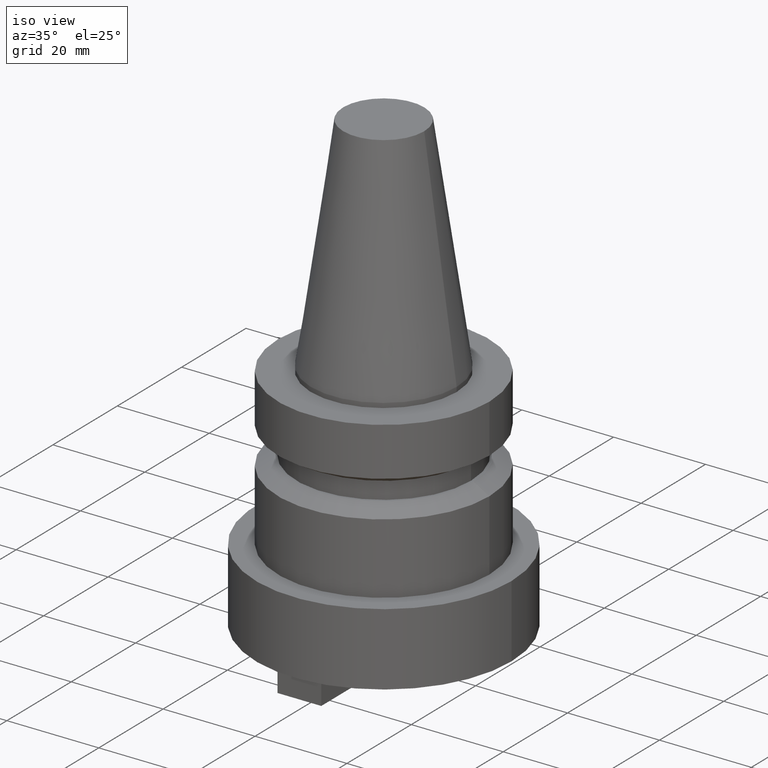
[diagram: clean part render]
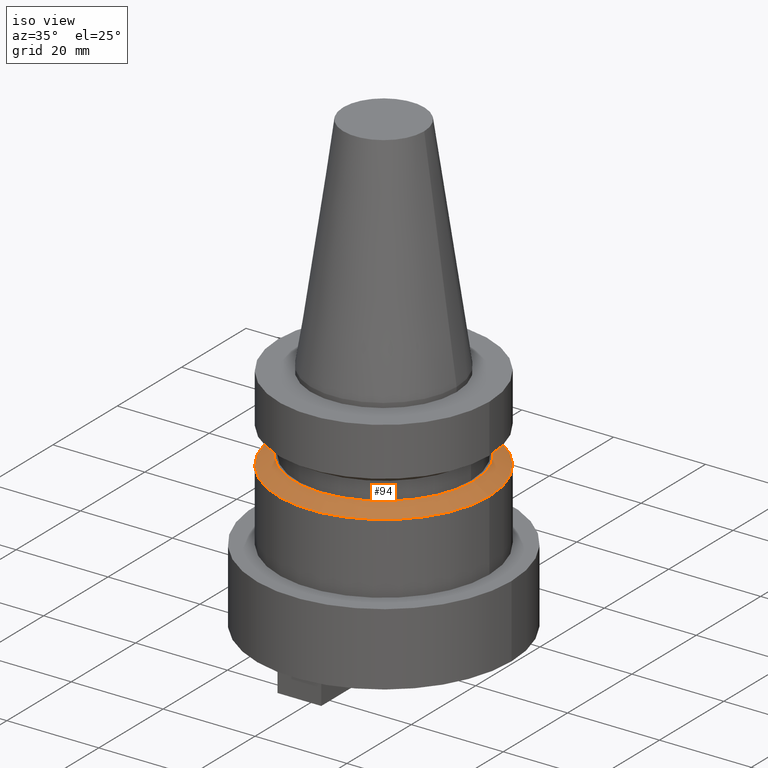
[diagram: same view with one face highlighted and labeled with its STEP entity id]
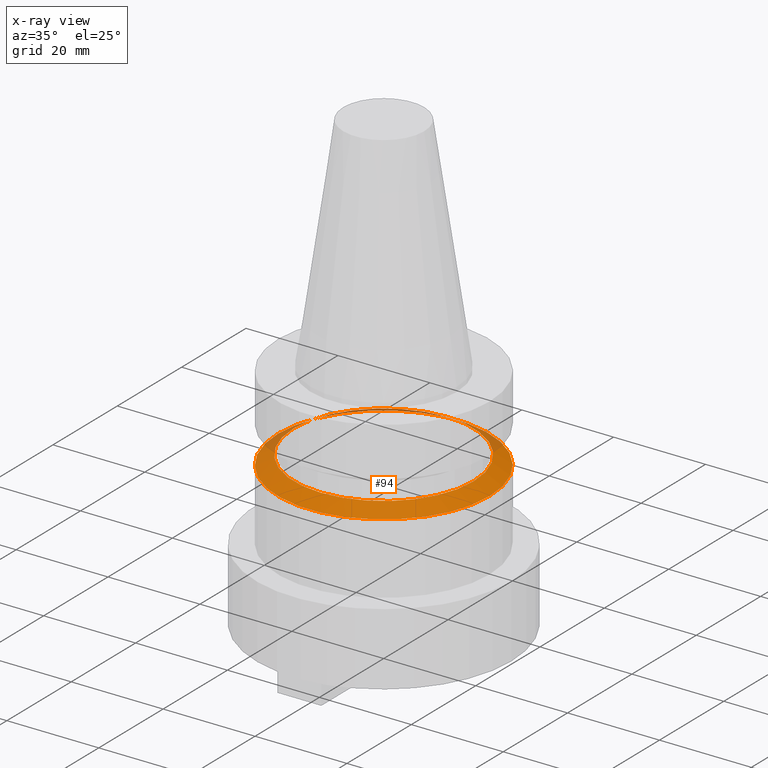
[diagram: x-ray of the same camera — body ghosted, the highlighted face saturated]
A machine part, iso view. The second image highlights one B-rep face of the part: STEP entity #94.
The next image is the same camera in x-ray: the body ghosted, the highlighted face saturated — about 10% of this face is hidden behind the body in this view.
In plain terms, the highlighted conical surface has half-angle 60 deg.
Its self-contained STEP definition (entity closure, byte-faithful):
#8 = DIRECTION ( 'NONE',  ( 1.000000000000000000, 0.000000000000000000, 0.000000000000000000 ) ) ;
#60 = EDGE_CURVE ( 'NONE', #512, #512, #128, .T. ) ;
#94 = ADVANCED_FACE ( 'NONE', ( #369, #331 ), #399, .T. ) ;
#97 = VERTEX_POINT ( 'NONE', #555 ) ;
#107 = AXIS2_PLACEMENT_3D ( 'NONE', #122, #636, #325 ) ;
#122 = CARTESIAN_POINT ( 'NONE',  ( 0.000000000000000000, 0.000000000000000000, -19.60014200631680836 ) ) ;
#128 = CIRCLE ( 'NONE', #476, 22.99999999999999645 ) ;
#134 = ORIENTED_EDGE ( 'NONE', *, *, #60, .T. ) ;
#186 = EDGE_LOOP ( 'NONE', ( #134 ) ) ;
#270 = DIRECTION ( 'NONE',  ( -0.000000000000000000, -0.000000000000000000, 1.000000000000000000 ) ) ;
#312 = CARTESIAN_POINT ( 'NONE',  ( 0.000000000000000000, 0.000000000000000000, -17.60014200631680836 ) ) ;
#325 = DIRECTION ( 'NONE',  ( -1.000000000000000000, 0.000000000000000000, 0.000000000000000000 ) ) ;
#331 = FACE_OUTER_BOUND ( 'NONE', #186, .T. ) ;
#369 = FACE_BOUND ( 'NONE', #558, .T. ) ;
#398 = CARTESIAN_POINT ( 'NONE',  ( 22.99999999999999645, 0.000000000000000000, -19.60014200631680836 ) ) ;
#399 = CONICAL_SURFACE ( 'NONE', #107, 22.99999999999999645, 1.047197551196588972 ) ;
#409 = CIRCLE ( 'NONE', #514, 19.53589838486230690 ) ;
#453 = EDGE_CURVE ( 'NONE', #97, #97, #409, .T. ) ;
#469 = ORIENTED_EDGE ( 'NONE', *, *, #453, .F. ) ;
#476 = AXIS2_PLACEMENT_3D ( 'NONE', #531, #543, #480 ) ;
#480 = DIRECTION ( 'NONE',  ( 1.000000000000000000, 0.000000000000000000, 0.000000000000000000 ) ) ;
#512 = VERTEX_POINT ( 'NONE', #398 ) ;
#514 = AXIS2_PLACEMENT_3D ( 'NONE', #312, #270, #8 ) ;
#531 = CARTESIAN_POINT ( 'NONE',  ( 0.000000000000000000, 0.000000000000000000, -19.60014200631680836 ) ) ;
#543 = DIRECTION ( 'NONE',  ( -0.000000000000000000, -0.000000000000000000, 1.000000000000000000 ) ) ;
#555 = CARTESIAN_POINT ( 'NONE',  ( 19.53589838486230690, 0.000000000000000000, -17.60014200631680836 ) ) ;
#558 = EDGE_LOOP ( 'NONE', ( #469 ) ) ;
#636 = DIRECTION ( 'NONE',  ( 0.000000000000000000, 0.000000000000000000, -1.000000000000000000 ) ) ;